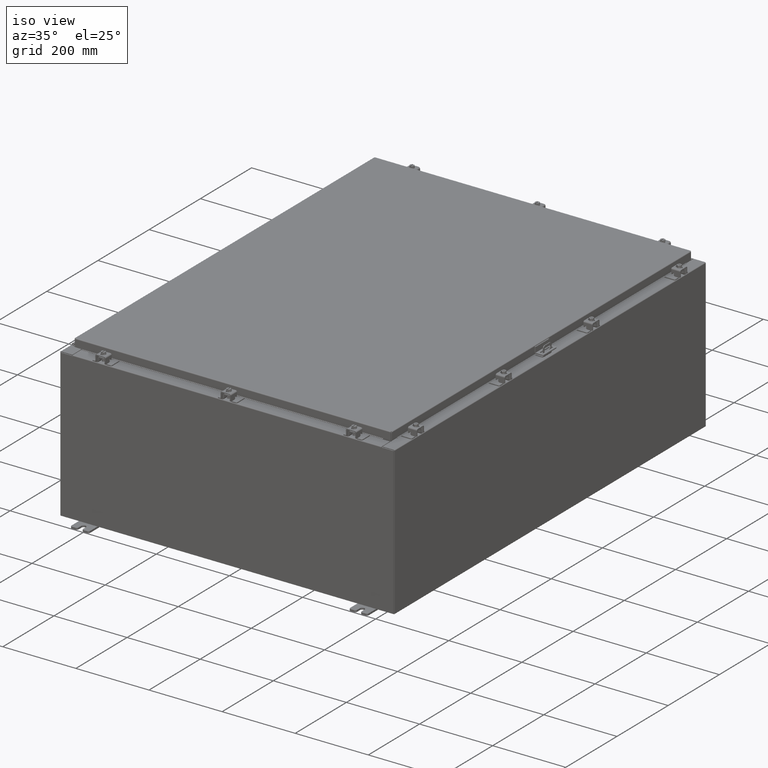
[diagram: clean part render]
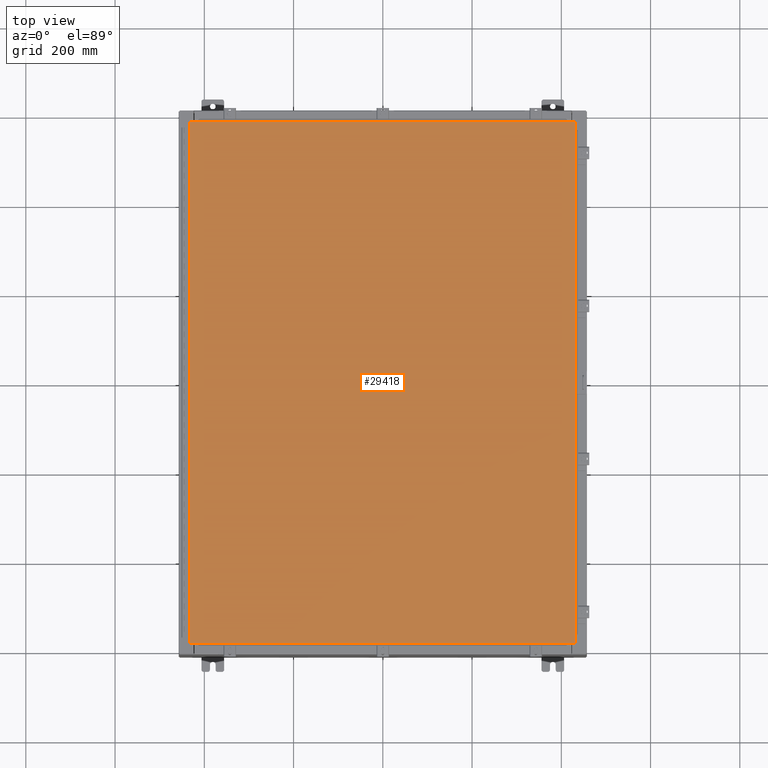
[diagram: tour spotlight — one face highlighted and labeled with its STEP entity id]
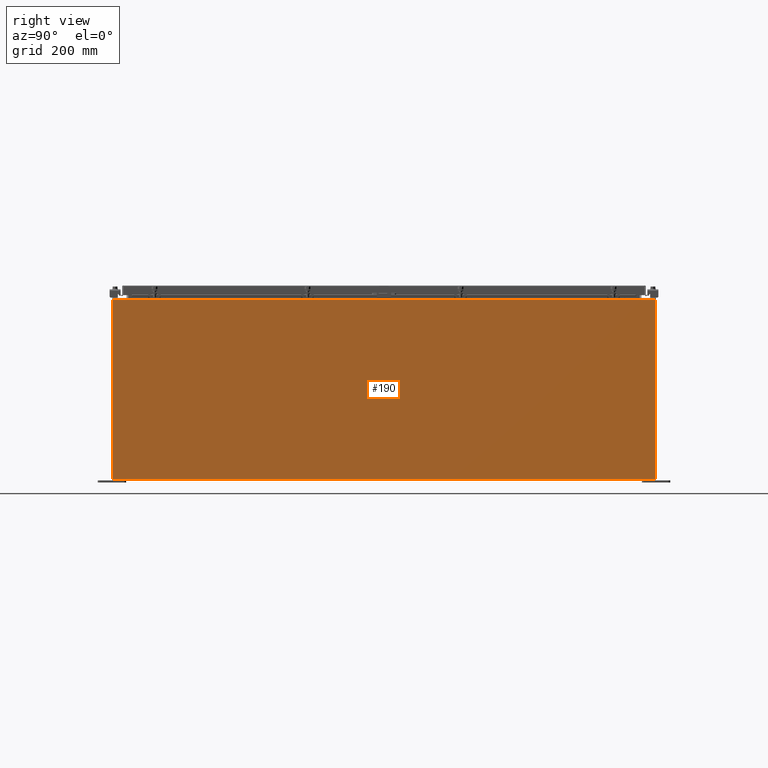
[diagram: tour spotlight — one face highlighted and labeled with its STEP entity id]
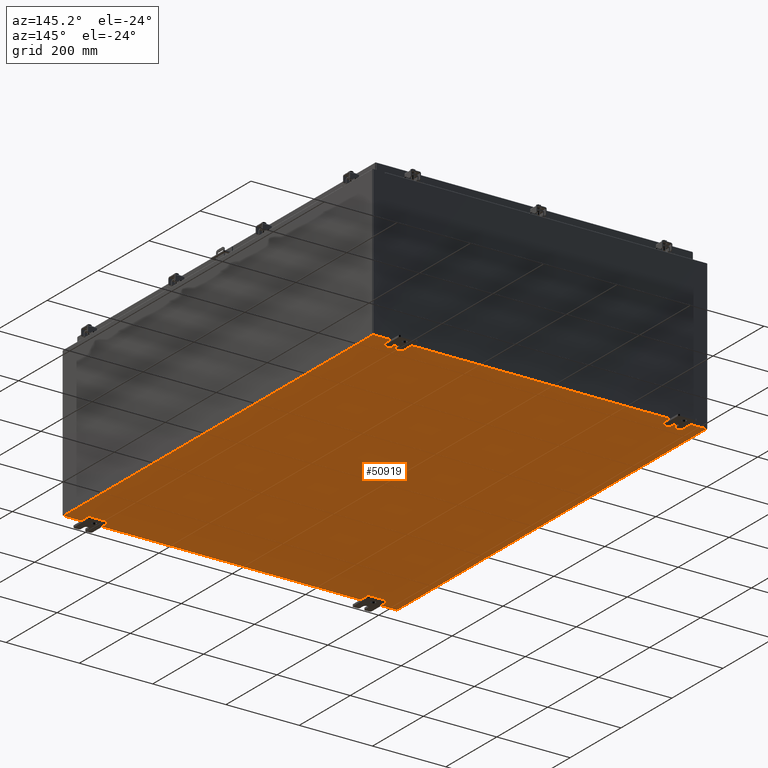
[diagram: tour spotlight — one face highlighted and labeled with its STEP entity id]
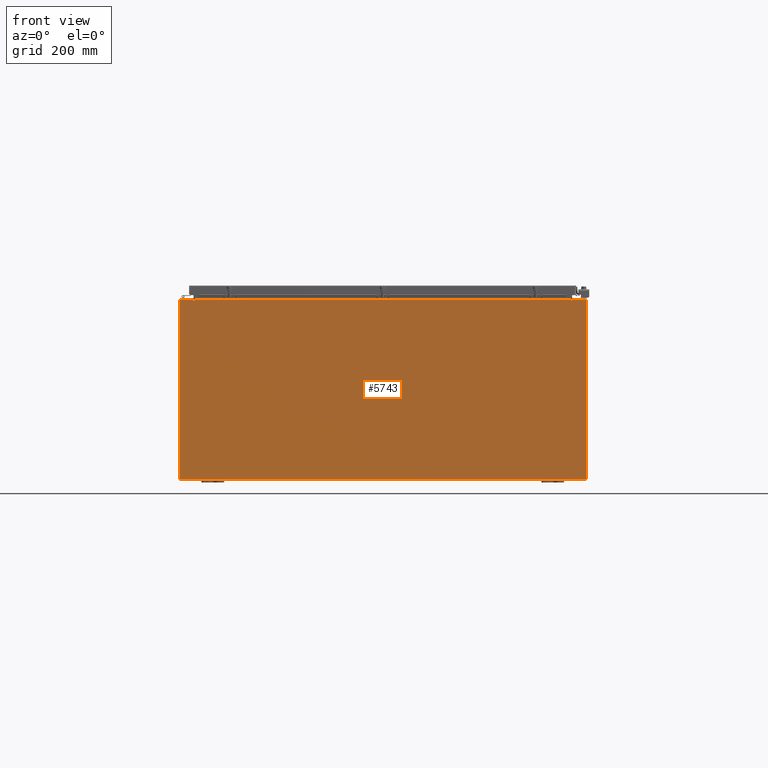
[diagram: tour spotlight — one face highlighted and labeled with its STEP entity id]
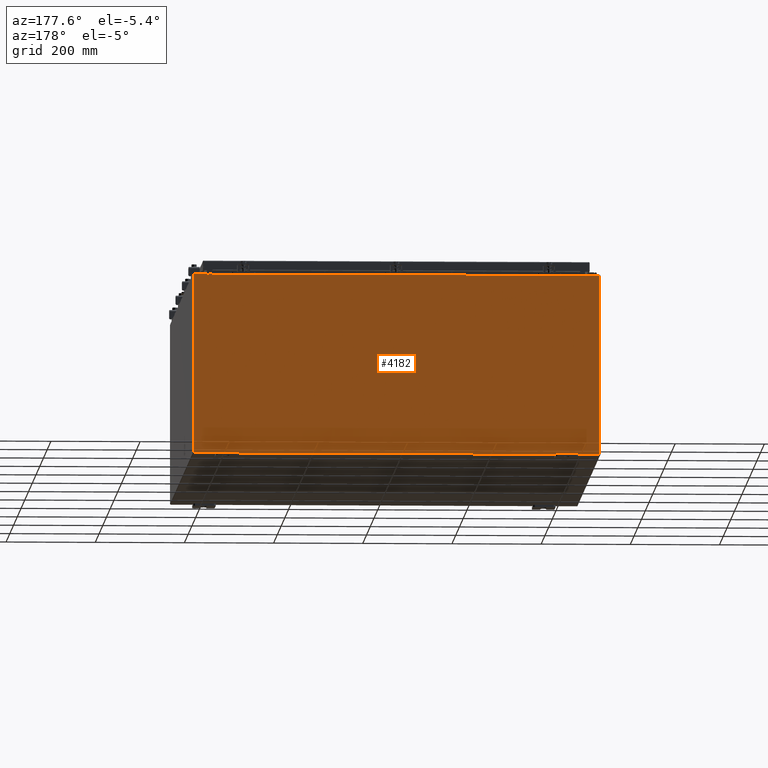
[diagram: tour spotlight — one face highlighted and labeled with its STEP entity id]
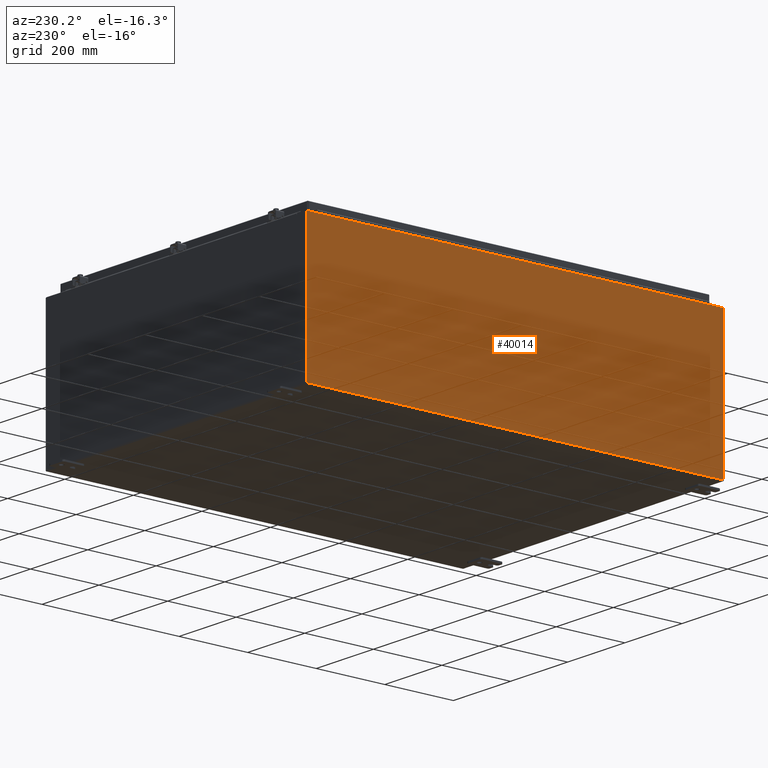
[diagram: tour spotlight — one face highlighted and labeled with its STEP entity id]
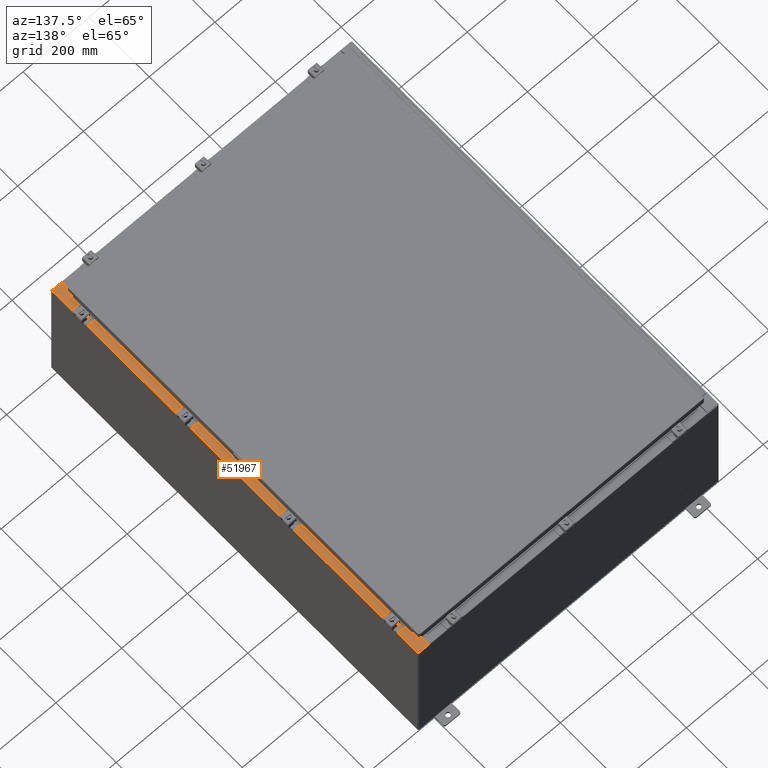
[diagram: tour spotlight — one face highlighted and labeled with its STEP entity id]
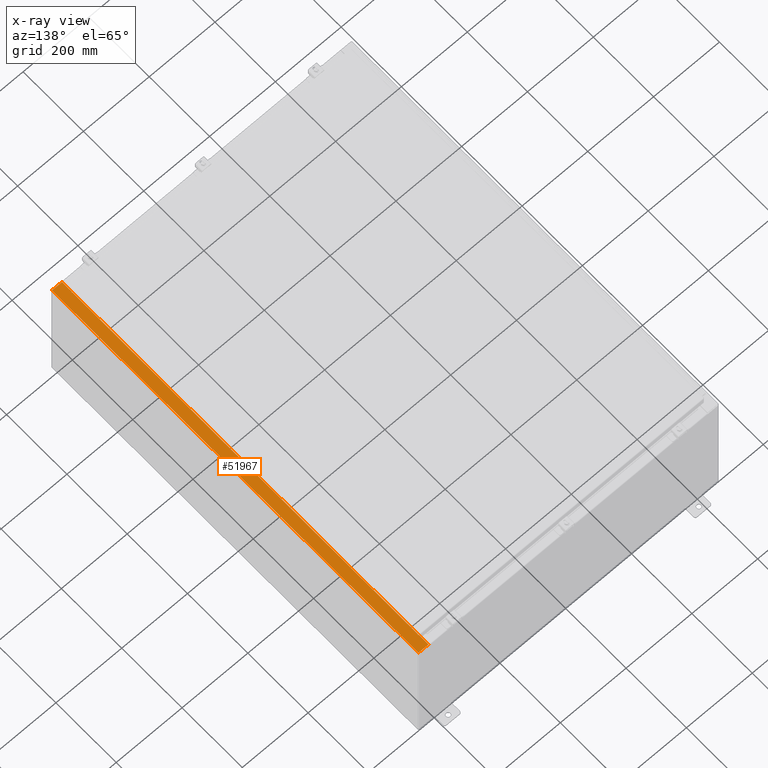
[diagram: x-ray of the same camera — body ghosted, this tour face saturated]
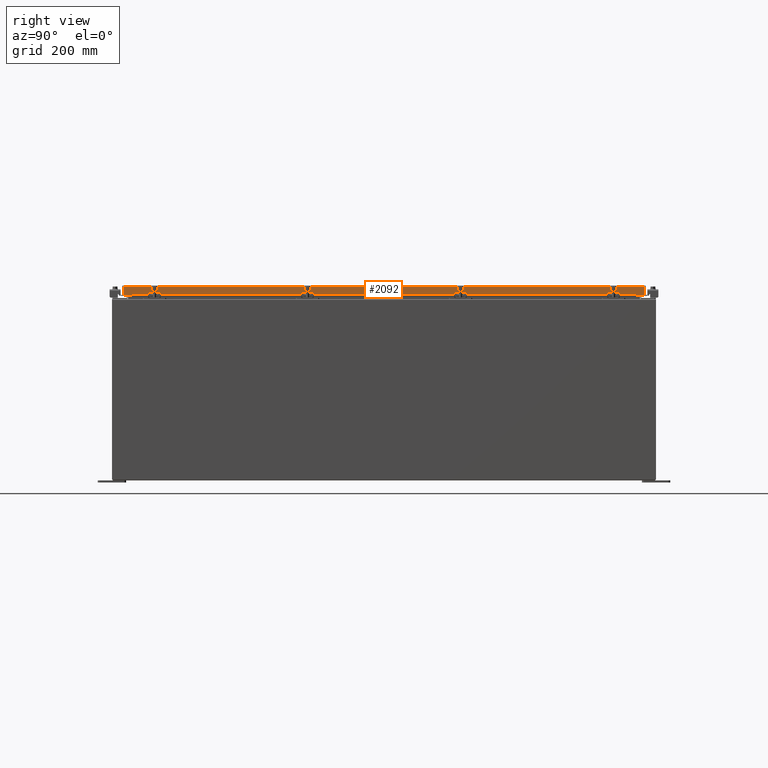
[diagram: tour spotlight — one face highlighted and labeled with its STEP entity id]
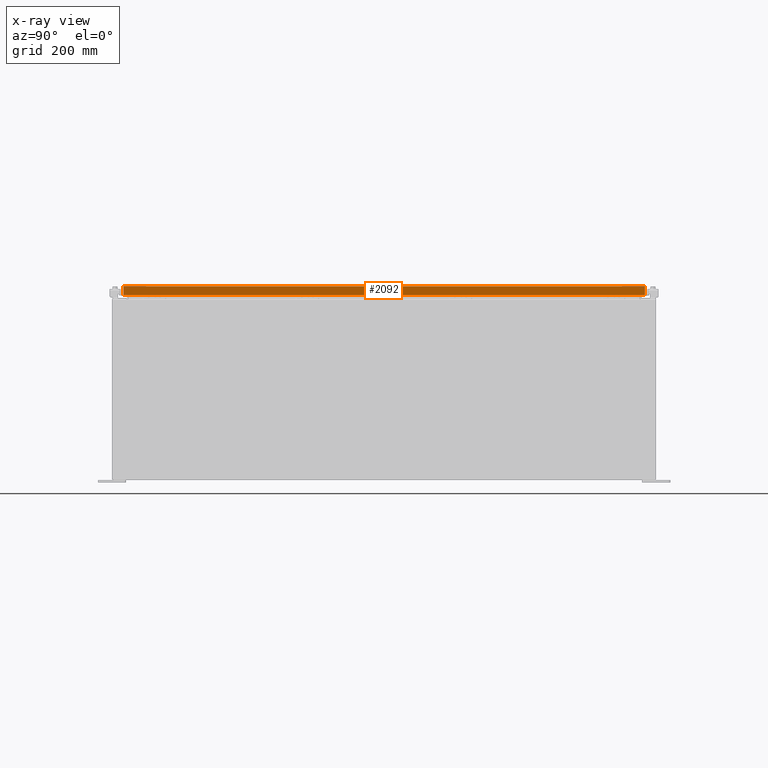
[diagram: x-ray of the same camera — body ghosted, this tour face saturated]
A machine part: a face-by-face anatomy tour. The part has 2999 B-rep faces; the first image is the clean iso view, then the 8 largest visible faces are spotlighted one at a time (largest first), each with its STEP entity span.

Face 1 — top view, entity #29418. In plain terms, the highlighted planar face has unit normal (0, 0, -1).
Definition (entity closure, byte-faithful):
#1171 = EDGE_LOOP ( 'NONE', ( #2895, #26150, #37841, #27634 ) ) ;
#2314 = CARTESIAN_POINT ( 'NONE',  ( -16.99029999999998400, 23.00630000000001000, -1.297627796990525000E-015 ) ) ;
#2895 = ORIENTED_EDGE ( 'NONE', *, *, #16157, .T. ) ;
#5520 = CARTESIAN_POINT ( 'NONE',  ( 16.99029999999999800, 23.00630000000001000, 1.946441695485787500E-015 ) ) ;
#6634 = VERTEX_POINT ( 'NONE', #2314 ) ;
#8112 = EDGE_CURVE ( 'NONE', #6634, #8594, #39844, .T. ) ;
#8594 = VERTEX_POINT ( 'NONE', #52334 ) ;
#12006 = PLANE ( 'NONE',  #14476 ) ;
#14476 = AXIS2_PLACEMENT_3D ( 'NONE', #41248, #16371, #45427 ) ;
#14924 = VERTEX_POINT ( 'NONE', #22422 ) ;
#15582 = CARTESIAN_POINT ( 'NONE',  ( 16.99029999999999800, -23.00630000000000300, -2.048885995248197400E-016 ) ) ;
#15733 = VERTEX_POINT ( 'NONE', #44893 ) ;
#16157 = EDGE_CURVE ( 'NONE', #8594, #14924, #31001, .T. ) ;
#16371 = DIRECTION ( 'NONE',  ( 0.0000000000000000000, 0.0000000000000000000, -1.000000000000000000 ) ) ;
#22422 = CARTESIAN_POINT ( 'NONE',  ( 16.99029999999999800, -23.00630000000000300, -2.048885995248197400E-016 ) ) ;
#23643 = LINE ( 'NONE', #15582, #47015 ) ;
#26150 = ORIENTED_EDGE ( 'NONE', *, *, #46929, .T. ) ;
#27634 = ORIENTED_EDGE ( 'NONE', *, *, #8112, .T. ) ;
#28037 = DIRECTION ( 'NONE',  ( 0.0000000000000000000, -1.000000000000000000, 0.0000000000000000000 ) ) ;
#28327 = CARTESIAN_POINT ( 'NONE',  ( -16.99029999999998400, 23.00630000000001000, -1.297627796990525000E-015 ) ) ;
#29418 = ADVANCED_FACE ( 'NONE', ( #30774 ), #12006, .F. ) ;
#30774 = FACE_OUTER_BOUND ( 'NONE', #1171, .T. ) ;
#31001 = LINE ( 'NONE', #32786, #51761 ) ;
#32724 = DIRECTION ( 'NONE',  ( 1.000000000000000000, -0.0000000000000000000, -0.0000000000000000000 ) ) ;
#32786 = CARTESIAN_POINT ( 'NONE',  ( -16.99029999999999800, -23.00630000000000300, 1.946441695485787500E-015 ) ) ;
#33405 = LINE ( 'NONE', #5520, #52902 ) ;
#35509 = EDGE_CURVE ( 'NONE', #15733, #6634, #33405, .T. ) ;
#37841 = ORIENTED_EDGE ( 'NONE', *, *, #35509, .T. ) ;
#39844 = LINE ( 'NONE', #28327, #50886 ) ;
#40462 = DIRECTION ( 'NONE',  ( 0.0000000000000000000, 1.000000000000000000, 0.0000000000000000000 ) ) ;
#41248 = CARTESIAN_POINT ( 'NONE',  ( 0.0000000000000000000, 0.0000000000000000000, 0.0000000000000000000 ) ) ;
#44893 = CARTESIAN_POINT ( 'NONE',  ( 16.99029999999999800, 23.00630000000001000, 1.946441695485787500E-015 ) ) ;
#45427 = DIRECTION ( 'NONE',  ( -1.000000000000000000, 0.0000000000000000000, -0.0000000000000000000 ) ) ;
#46929 = EDGE_CURVE ( 'NONE', #14924, #15733, #23643, .T. ) ;
#47015 = VECTOR ( 'NONE', #40462, 39.37007874015748100 ) ;
#47180 = DIRECTION ( 'NONE',  ( -1.000000000000000000, -0.0000000000000000000, -0.0000000000000000000 ) ) ;
#50886 = VECTOR ( 'NONE', #28037, 39.37007874015748100 ) ;
#51761 = VECTOR ( 'NONE', #32724, 39.37007874015748100 ) ;
#52334 = CARTESIAN_POINT ( 'NONE',  ( -16.99029999999999800, -23.00630000000000300, 1.946441695485787500E-015 ) ) ;
#52902 = VECTOR ( 'NONE', #47180, 39.37007874015748100 ) ;

Face 2 — right view, entity #190. In plain terms, the highlighted planar face has unit normal (-1, 0, 0).
Definition (entity closure, byte-faithful):
#190 = ADVANCED_FACE ( 'NONE', ( #40171 ), #27738, .F. ) ;
#564 = CARTESIAN_POINT ( 'NONE',  ( 17.99999999999999600, -23.92529999999998900, -6.201571169367080700E-014 ) ) ;
#3553 = AXIS2_PLACEMENT_3D ( 'NONE', #27453, #27391, #27358 ) ;
#6906 = EDGE_CURVE ( 'NONE', #37162, #32823, #31464, .T. ) ;
#8570 = VECTOR ( 'NONE', #50449, 39.37007874015748100 ) ;
#8915 = LINE ( 'NONE', #32624, #29795 ) ;
#9981 = EDGE_CURVE ( 'NONE', #37162, #26116, #8915, .T. ) ;
#14416 = ORIENTED_EDGE ( 'NONE', *, *, #9981, .F. ) ;
#15248 = CARTESIAN_POINT ( 'NONE',  ( 18.00000000000005000, 23.92529999999998900, 15.83760000000001400 ) ) ;
#15318 = CARTESIAN_POINT ( 'NONE',  ( 17.99999999999999600, -23.92529999999998900, 0.01299999999999898300 ) ) ;
#15794 = ORIENTED_EDGE ( 'NONE', *, *, #22948, .T. ) ;
#19399 = DIRECTION ( 'NONE',  ( -0.0000000000000000000, -1.000000000000000000, -0.0000000000000000000 ) ) ;
#20432 = VECTOR ( 'NONE', #20442, 39.37007874015748100 ) ;
#20442 = DIRECTION ( 'NONE',  ( 3.430827668758847500E-015, 0.0000000000000000000, 1.000000000000000000 ) ) ;
#21009 = ORIENTED_EDGE ( 'NONE', *, *, #38597, .T. ) ;
#22948 = EDGE_CURVE ( 'NONE', #32823, #44225, #31456, .T. ) ;
#26116 = VERTEX_POINT ( 'NONE', #15318 ) ;
#26758 = CARTESIAN_POINT ( 'NONE',  ( 18.00000000000005000, 23.92529999999998600, 15.83760000000001400 ) ) ;
#27135 = EDGE_LOOP ( 'NONE', ( #15794, #21009, #14416, #43679 ) ) ;
#27358 = DIRECTION ( 'NONE',  ( 3.430827668758846700E-015, 0.0000000000000000000, 1.000000000000000000 ) ) ;
#27391 = DIRECTION ( 'NONE',  ( -1.000000000000000000, 0.0000000000000000000, 3.430827668758846700E-015 ) ) ;
#27453 = CARTESIAN_POINT ( 'NONE',  ( 17.99999999999999600, 0.0000000000000000000, -6.201571169367080700E-014 ) ) ;
#27738 = PLANE ( 'NONE',  #3553 ) ;
#29795 = VECTOR ( 'NONE', #32279, 39.37007874015748100 ) ;
#30608 = CARTESIAN_POINT ( 'NONE',  ( 18.00000000000005000, -23.92529999999998900, 15.83760000000000200 ) ) ;
#30766 = LINE ( 'NONE', #564, #8570 ) ;
#31456 = LINE ( 'NONE', #15248, #52209 ) ;
#31464 = LINE ( 'NONE', #53433, #20432 ) ;
#32279 = DIRECTION ( 'NONE',  ( -1.566960444969418600E-031, -1.000000000000000000, -4.567295697298285000E-017 ) ) ;
#32624 = CARTESIAN_POINT ( 'NONE',  ( 17.99999999999999600, -23.92529999999998900, 0.01299999999999984700 ) ) ;
#32823 = VERTEX_POINT ( 'NONE', #26758 ) ;
#37162 = VERTEX_POINT ( 'NONE', #52956 ) ;
#38597 = EDGE_CURVE ( 'NONE', #44225, #26116, #30766, .T. ) ;
#40171 = FACE_OUTER_BOUND ( 'NONE', #27135, .T. ) ;
#43679 = ORIENTED_EDGE ( 'NONE', *, *, #6906, .T. ) ;
#44225 = VERTEX_POINT ( 'NONE', #30608 ) ;
#50449 = DIRECTION ( 'NONE',  ( -3.430827668758847500E-015, 0.0000000000000000000, -1.000000000000000000 ) ) ;
#52209 = VECTOR ( 'NONE', #19399, 39.37007874015748100 ) ;
#52956 = CARTESIAN_POINT ( 'NONE',  ( 17.99999999999999600, 23.92529999999998600, 0.01300000000000203200 ) ) ;
#53433 = CARTESIAN_POINT ( 'NONE',  ( 17.99999999999999600, 23.92529999999998900, -6.201571169367080700E-014 ) ) ;

Face 3 — auxiliary view, entity #50919. In plain terms, the highlighted planar face has unit normal (0, 0, -1).
Definition (entity closure, byte-faithful):
#72 = LINE ( 'NONE', #16853, #43060 ) ;
#1663 = LINE ( 'NONE', #48995, #33581 ) ;
#4718 = EDGE_CURVE ( 'NONE', #29238, #27357, #1663, .T. ) ;
#4918 = ORIENTED_EDGE ( 'NONE', *, *, #11083, .T. ) ;
#6222 = CARTESIAN_POINT ( 'NONE',  ( -18.00000000000000400, -23.92530000000000400, -0.07470000000000000300 ) ) ;
#7675 = LINE ( 'NONE', #6222, #29897 ) ;
#11083 = EDGE_CURVE ( 'NONE', #31146, #36055, #47288, .T. ) ;
#11749 = DIRECTION ( 'NONE',  ( -0.0000000000000000000, 1.000000000000000000, -0.0000000000000000000 ) ) ;
#12628 = CARTESIAN_POINT ( 'NONE',  ( 17.91229999999999500, -23.92530000000000000, -0.07470000000000000300 ) ) ;
#12982 = CARTESIAN_POINT ( 'NONE',  ( -17.91230000000000500, -23.92529999999998900, -0.07469999999999994700 ) ) ;
#16853 = CARTESIAN_POINT ( 'NONE',  ( -18.00000000000000400, 23.92530000000000000, -0.07470000000000000300 ) ) ;
#21894 = EDGE_LOOP ( 'NONE', ( #41852, #4918, #51636, #47450 ) ) ;
#23924 = VECTOR ( 'NONE', #11749, 39.37007874015748100 ) ;
#27357 = VERTEX_POINT ( 'NONE', #12628 ) ;
#28498 = DIRECTION ( 'NONE',  ( -1.000000000000000000, 0.0000000000000000000, -0.0000000000000000000 ) ) ;
#29238 = VERTEX_POINT ( 'NONE', #44341 ) ;
#29897 = VECTOR ( 'NONE', #35352, 39.37007874015748100 ) ;
#31146 = VERTEX_POINT ( 'NONE', #44497 ) ;
#31630 = EDGE_CURVE ( 'NONE', #31146, #27357, #7675, .T. ) ;
#33001 = DIRECTION ( 'NONE',  ( -1.000000000000000000, -0.0000000000000000000, -0.0000000000000000000 ) ) ;
#33581 = VECTOR ( 'NONE', #49391, 39.37007874015748100 ) ;
#35352 = DIRECTION ( 'NONE',  ( 1.000000000000000000, 1.214154663850783700E-016, 0.0000000000000000000 ) ) ;
#36055 = VERTEX_POINT ( 'NONE', #36702 ) ;
#36702 = CARTESIAN_POINT ( 'NONE',  ( -17.91230000000000500, 23.92529999999998900, -0.07470000000000000300 ) ) ;
#38532 = EDGE_CURVE ( 'NONE', #29238, #36055, #72, .T. ) ;
#38966 = FACE_OUTER_BOUND ( 'NONE', #21894, .T. ) ;
#40823 = PLANE ( 'NONE',  #53547 ) ;
#41852 = ORIENTED_EDGE ( 'NONE', *, *, #31630, .F. ) ;
#43060 = VECTOR ( 'NONE', #33001, 39.37007874015748100 ) ;
#44341 = CARTESIAN_POINT ( 'NONE',  ( 17.91229999999999500, 23.92529999999998600, -0.07469999999999688000 ) ) ;
#44497 = CARTESIAN_POINT ( 'NONE',  ( -17.91230000000000500, -23.92529999999998600, -0.07469999999999994700 ) ) ;
#47288 = LINE ( 'NONE', #12982, #23924 ) ;
#47450 = ORIENTED_EDGE ( 'NONE', *, *, #4718, .T. ) ;
#48995 = CARTESIAN_POINT ( 'NONE',  ( 17.91229999999999500, 23.92529999999998900, -0.07469999999999688000 ) ) ;
#49391 = DIRECTION ( 'NONE',  ( -0.0000000000000000000, -1.000000000000000000, -8.208677865577646300E-017 ) ) ;
#50919 = ADVANCED_FACE ( 'NONE', ( #38966 ), #40823, .T. ) ;
#51636 = ORIENTED_EDGE ( 'NONE', *, *, #38532, .F. ) ;
#53159 = CARTESIAN_POINT ( 'NONE',  ( 0.0000000000000000000, 0.0000000000000000000, -0.07470000000000000300 ) ) ;
#53350 = DIRECTION ( 'NONE',  ( 0.0000000000000000000, 0.0000000000000000000, -1.000000000000000000 ) ) ;
#53547 = AXIS2_PLACEMENT_3D ( 'NONE', #53159, #53350, #28498 ) ;

Face 4 — front view, entity #5743. In plain terms, the highlighted planar face has unit normal (-0, 1, -0).
Definition (entity closure, byte-faithful):
#1166 = VERTEX_POINT ( 'NONE', #16401 ) ;
#2170 = VECTOR ( 'NONE', #33138, 39.37007874015748100 ) ;
#3894 = LINE ( 'NONE', #22640, #24821 ) ;
#4020 = CARTESIAN_POINT ( 'NONE',  ( -16.63720000000000400, -0.0000000000000000000, 0.0000000000000000000 ) ) ;
#4654 = VERTEX_POINT ( 'NONE', #49142 ) ;
#5743 = ADVANCED_FACE ( 'NONE', ( #39359 ), #22353, .F. ) ;
#6007 = VERTEX_POINT ( 'NONE', #16470 ) ;
#6257 = CARTESIAN_POINT ( 'NONE',  ( -16.65587500000000200, 0.0000000000000000000, 7.874950000000001900 ) ) ;
#6452 = VECTOR ( 'NONE', #8465, 39.37007874015748100 ) ;
#6575 = CARTESIAN_POINT ( 'NONE',  ( -16.67455000000000000, 0.0000000000000000000, 7.925300000000001800 ) ) ;
#6834 = EDGE_CURVE ( 'NONE', #45065, #16388, #45085, .T. ) ;
#7066 = ORIENTED_EDGE ( 'NONE', *, *, #8341, .F. ) ;
#7680 = ORIENTED_EDGE ( 'NONE', *, *, #6834, .T. ) ;
#7919 = CARTESIAN_POINT ( 'NONE',  ( -17.92530000000000000, 0.0000000000000000000, 7.925300000000001800 ) ) ;
#7985 = VERTEX_POINT ( 'NONE', #35942 ) ;
#8327 = CARTESIAN_POINT ( 'NONE',  ( 17.92530000000000000, 0.0000000000000000000, 7.925300000000000000 ) ) ;
#8341 = EDGE_CURVE ( 'NONE', #30681, #13584, #40478, .T. ) ;
#8465 = DIRECTION ( 'NONE',  ( -1.000000000000000000, -0.0000000000000000000, -0.0000000000000000000 ) ) ;
#8798 = LINE ( 'NONE', #32637, #18602 ) ;
#9398 = CARTESIAN_POINT ( 'NONE',  ( -17.92530000000000000, 0.0000000000000000000, -7.925299999999997300 ) ) ;
#9473 = LINE ( 'NONE', #18185, #19293 ) ;
#10494 = DIRECTION ( 'NONE',  ( 0.0000000000000000000, 0.0000000000000000000, -1.000000000000000000 ) ) ;
#11338 = CARTESIAN_POINT ( 'NONE',  ( -16.67455000000000000, 0.0000000000000000000, 7.874950000000001900 ) ) ;
#11970 = DIRECTION ( 'NONE',  ( 1.000000000000000000, 0.0000000000000000000, -6.096072018129154100E-017 ) ) ;
#12288 = VERTEX_POINT ( 'NONE', #25912 ) ;
#12326 = DIRECTION ( 'NONE',  ( -0.0000000000000000000, 1.000000000000000000, -0.0000000000000000000 ) ) ;
#12799 = VECTOR ( 'NONE', #40572, 39.37007874015748100 ) ;
#13001 = VERTEX_POINT ( 'NONE', #6575 ) ;
#13584 = VERTEX_POINT ( 'NONE', #49342 ) ;
#14021 = DIRECTION ( 'NONE',  ( 0.0000000000000000000, 0.0000000000000000000, 1.000000000000000000 ) ) ;
#14607 = ORIENTED_EDGE ( 'NONE', *, *, #14903, .F. ) ;
#14903 = EDGE_CURVE ( 'NONE', #6007, #4654, #3894, .T. ) ;
#15350 = EDGE_CURVE ( 'NONE', #12288, #45065, #29965, .T. ) ;
#15792 = DIRECTION ( 'NONE',  ( -8.681145560800387200E-014, 0.0000000000000000000, -1.000000000000000000 ) ) ;
#15840 = EDGE_CURVE ( 'NONE', #30681, #34734, #24558, .T. ) ;
#15969 = LINE ( 'NONE', #20431, #47811 ) ;
#16071 = EDGE_CURVE ( 'NONE', #34734, #12288, #34888, .T. ) ;
#16272 = CARTESIAN_POINT ( 'NONE',  ( 16.67454999999931800, -0.0000000000000000000, -1.447541957108381700E-012 ) ) ;
#16388 = VERTEX_POINT ( 'NONE', #21304 ) ;
#16401 = CARTESIAN_POINT ( 'NONE',  ( -16.63720000000000400, -0.0000000000000000000, 7.874950000000001900 ) ) ;
#16470 = CARTESIAN_POINT ( 'NONE',  ( 16.63720000000000400, 0.0000000000000000000, 7.874950000000001900 ) ) ;
#16653 = CIRCLE ( 'NONE', #51273, 0.01867499999999949400 ) ;
#17542 = DIRECTION ( 'NONE',  ( 1.000000000000000000, 0.0000000000000000000, -6.096072018129154100E-017 ) ) ;
#18185 = CARTESIAN_POINT ( 'NONE',  ( -16.67455000000000000, -0.0000000000000000000, 0.0000000000000000000 ) ) ;
#18384 = VECTOR ( 'NONE', #15792, 39.37007874015748100 ) ;
#18602 = VECTOR ( 'NONE', #11970, 39.37007874015748100 ) ;
#19265 = CARTESIAN_POINT ( 'NONE',  ( -17.92530000000000000, 0.0000000000000000000, -7.925299999999997300 ) ) ;
#19293 = VECTOR ( 'NONE', #14021, 39.37007874015748100 ) ;
#20431 = CARTESIAN_POINT ( 'NONE',  ( -16.63720000000000400, -2.356218894535426900E-015, 7.912300000000008100 ) ) ;
#20460 = DIRECTION ( 'NONE',  ( -0.0000000000000000000, -0.0000000000000000000, 1.000000000000000000 ) ) ;
#21304 = CARTESIAN_POINT ( 'NONE',  ( -17.92530000000000000, 0.0000000000000000000, 7.925300000000001800 ) ) ;
#21993 = DIRECTION ( 'NONE',  ( 0.0000000000000000000, -0.0000000000000000000, -1.000000000000000000 ) ) ;
#22054 = DIRECTION ( 'NONE',  ( 0.0000000000000000000, -1.000000000000000000, 0.0000000000000000000 ) ) ;
#22353 = PLANE ( 'NONE',  #41432 ) ;
#22576 = DIRECTION ( 'NONE',  ( 0.0000000000000000000, 0.0000000000000000000, 1.000000000000000000 ) ) ;
#22640 = CARTESIAN_POINT ( 'NONE',  ( 16.63720000000000400, 0.0000000000000000000, 0.0000000000000000000 ) ) ;
#23347 = CARTESIAN_POINT ( 'NONE',  ( 0.0000000000000000000, 0.0000000000000000000, 0.0000000000000000000 ) ) ;
#24119 = ORIENTED_EDGE ( 'NONE', *, *, #34686, .T. ) ;
#24558 = LINE ( 'NONE', #7919, #45312 ) ;
#24821 = VECTOR ( 'NONE', #22576, 39.37007874015748100 ) ;
#25912 = CARTESIAN_POINT ( 'NONE',  ( 17.92530000000000000, 0.0000000000000000000, -7.925299999999997300 ) ) ;
#28191 = EDGE_CURVE ( 'NONE', #13584, #6007, #16653, .T. ) ;
#28767 = CARTESIAN_POINT ( 'NONE',  ( 16.67455000000000700, 0.0000000000000000000, 7.925300000000000000 ) ) ;
#29464 = CARTESIAN_POINT ( 'NONE',  ( -17.92530000000000000, 0.0000000000000000000, 7.925300000000001800 ) ) ;
#29965 = LINE ( 'NONE', #9398, #6452 ) ;
#30274 = ORIENTED_EDGE ( 'NONE', *, *, #42940, .F. ) ;
#30648 = ORIENTED_EDGE ( 'NONE', *, *, #16071, .T. ) ;
#30681 = VERTEX_POINT ( 'NONE', #28767 ) ;
#31527 = LINE ( 'NONE', #4020, #2170 ) ;
#32144 = ORIENTED_EDGE ( 'NONE', *, *, #15350, .T. ) ;
#32637 = CARTESIAN_POINT ( 'NONE',  ( -17.92530000000000000, 0.0000000000000000000, 7.925300000000001800 ) ) ;
#33138 = DIRECTION ( 'NONE',  ( 0.0000000000000000000, 0.0000000000000000000, -1.000000000000000000 ) ) ;
#34023 = VECTOR ( 'NONE', #20460, 39.37007874015748100 ) ;
#34415 = CIRCLE ( 'NONE', #44845, 0.01867499999999949400 ) ;
#34686 = EDGE_CURVE ( 'NONE', #7985, #4654, #15969, .T. ) ;
#34734 = VERTEX_POINT ( 'NONE', #8327 ) ;
#34888 = LINE ( 'NONE', #40913, #12799 ) ;
#35393 = DIRECTION ( 'NONE',  ( -0.0000000000000000000, 1.000000000000000000, -0.0000000000000000000 ) ) ;
#35942 = CARTESIAN_POINT ( 'NONE',  ( -16.63720000000000400, -2.356218894535426900E-015, 7.912300000000008100 ) ) ;
#36411 = ORIENTED_EDGE ( 'NONE', *, *, #37312, .F. ) ;
#36419 = EDGE_CURVE ( 'NONE', #40310, #13001, #9473, .T. ) ;
#36697 = ORIENTED_EDGE ( 'NONE', *, *, #28191, .F. ) ;
#37192 = CARTESIAN_POINT ( 'NONE',  ( 16.65587500000000200, 0.0000000000000000000, 7.874950000000001900 ) ) ;
#37312 = EDGE_CURVE ( 'NONE', #7985, #1166, #31527, .T. ) ;
#39359 = FACE_OUTER_BOUND ( 'NONE', #42779, .T. ) ;
#40310 = VERTEX_POINT ( 'NONE', #11338 ) ;
#40478 = LINE ( 'NONE', #16272, #18384 ) ;
#40572 = DIRECTION ( 'NONE',  ( 0.0000000000000000000, 0.0000000000000000000, -1.000000000000000000 ) ) ;
#40913 = CARTESIAN_POINT ( 'NONE',  ( 17.92530000000000000, 0.0000000000000000000, 7.925300000000000000 ) ) ;
#41377 = DIRECTION ( 'NONE',  ( 0.0000000000000000000, 0.0000000000000000000, -1.000000000000000000 ) ) ;
#41432 = AXIS2_PLACEMENT_3D ( 'NONE', #23347, #22054, #21993 ) ;
#42779 = EDGE_LOOP ( 'NONE', ( #47159, #30274, #36411, #24119, #14607, #36697, #7066, #49056, #30648, #32144, #7680, #44138 ) ) ;
#42940 = EDGE_CURVE ( 'NONE', #1166, #40310, #34415, .T. ) ;
#44138 = ORIENTED_EDGE ( 'NONE', *, *, #45182, .T. ) ;
#44845 = AXIS2_PLACEMENT_3D ( 'NONE', #6257, #35393, #10494 ) ;
#45065 = VERTEX_POINT ( 'NONE', #19265 ) ;
#45085 = LINE ( 'NONE', #29464, #34023 ) ;
#45182 = EDGE_CURVE ( 'NONE', #16388, #13001, #8798, .T. ) ;
#45312 = VECTOR ( 'NONE', #17542, 39.37007874015748100 ) ;
#47159 = ORIENTED_EDGE ( 'NONE', *, *, #36419, .F. ) ;
#47811 = VECTOR ( 'NONE', #49441, 39.37007874015748100 ) ;
#49056 = ORIENTED_EDGE ( 'NONE', *, *, #15840, .T. ) ;
#49142 = CARTESIAN_POINT ( 'NONE',  ( 16.63720000000000400, 0.0000000000000000000, 7.912300000000001900 ) ) ;
#49342 = CARTESIAN_POINT ( 'NONE',  ( 16.67455000000000000, 0.0000000000000000000, 7.874950000000001900 ) ) ;
#49441 = DIRECTION ( 'NONE',  ( 1.000000000000000000, 0.0000000000000000000, 0.0000000000000000000 ) ) ;
#51273 = AXIS2_PLACEMENT_3D ( 'NONE', #37192, #12326, #41377 ) ;

Face 5 — auxiliary view, entity #4182. In plain terms, the highlighted planar face has unit normal (0, -1, 0).
Definition (entity closure, byte-faithful):
#1086 = EDGE_CURVE ( 'NONE', #13021, #41568, #41350, .T. ) ;
#2528 = EDGE_CURVE ( 'NONE', #5652, #52575, #37097, .T. ) ;
#4182 = ADVANCED_FACE ( 'NONE', ( #4354 ), #25015, .F. ) ;
#4354 = FACE_OUTER_BOUND ( 'NONE', #31393, .T. ) ;
#5200 = CARTESIAN_POINT ( 'NONE',  ( -16.67455000000000000, 0.0000000000000000000, 7.874950000000001900 ) ) ;
#5199 = DIRECTION ( 'NONE',  ( 0.0000000000000000000, 0.0000000000000000000, 1.000000000000000000 ) ) ;
#5386 = CARTESIAN_POINT ( 'NONE',  ( 16.67455000000000700, 0.0000000000000000000, 7.925300000000000000 ) ) ;
#5618 = DIRECTION ( 'NONE',  ( 0.0000000000000000000, -0.0000000000000000000, -1.000000000000000000 ) ) ;
#5652 = VERTEX_POINT ( 'NONE', #24715 ) ;
#6684 = ORIENTED_EDGE ( 'NONE', *, *, #32164, .T. ) ;
#7285 = VERTEX_POINT ( 'NONE', #11741 ) ;
#8282 = EDGE_CURVE ( 'NONE', #5652, #11285, #21033, .T. ) ;
#8969 = VECTOR ( 'NONE', #33643, 39.37007874015748100 ) ;
#9460 = DIRECTION ( 'NONE',  ( 0.0000000000000000000, -1.000000000000000000, 0.0000000000000000000 ) ) ;
#10056 = EDGE_CURVE ( 'NONE', #11285, #17646, #46646, .T. ) ;
#11007 = LINE ( 'NONE', #36868, #42834 ) ;
#11285 = VERTEX_POINT ( 'NONE', #22337 ) ;
#11674 = CARTESIAN_POINT ( 'NONE',  ( 16.63720000000000400, 0.0000000000000000000, 7.912300000000001900 ) ) ;
#11741 = CARTESIAN_POINT ( 'NONE',  ( 17.92530000000000000, 0.0000000000000000000, 7.925300000000000000 ) ) ;
#12866 = CARTESIAN_POINT ( 'NONE',  ( 16.67454999999931800, -0.0000000000000000000, -1.447541957108381700E-012 ) ) ;
#13021 = VERTEX_POINT ( 'NONE', #5386 ) ;
#13119 = DIRECTION ( 'NONE',  ( -8.681145560800387200E-014, 0.0000000000000000000, -1.000000000000000000 ) ) ;
#13189 = LINE ( 'NONE', #21850, #22968 ) ;
#13278 = CARTESIAN_POINT ( 'NONE',  ( 16.63720000000000400, 0.0000000000000000000, 0.0000000000000000000 ) ) ;
#13357 = ORIENTED_EDGE ( 'NONE', *, *, #2528, .T. ) ;
#14421 = ORIENTED_EDGE ( 'NONE', *, *, #29628, .F. ) ;
#14877 = VECTOR ( 'NONE', #26468, 39.37007874015748100 ) ;
#15042 = VECTOR ( 'NONE', #32499, 39.37007874015748100 ) ;
#15204 = CARTESIAN_POINT ( 'NONE',  ( -17.92530000000000000, 0.0000000000000000000, 7.925300000000001800 ) ) ;
#16516 = CIRCLE ( 'NONE', #19699, 0.01867499999999949400 ) ;
#17104 = EDGE_CURVE ( 'NONE', #13021, #7285, #38041, .T. ) ;
#17488 = DIRECTION ( 'NONE',  ( 1.000000000000000000, 0.0000000000000000000, -6.096072018129154100E-017 ) ) ;
#17591 = EDGE_CURVE ( 'NONE', #49394, #52575, #28246, .T. ) ;
#17646 = VERTEX_POINT ( 'NONE', #5200 ) ;
#17909 = EDGE_CURVE ( 'NONE', #41568, #49394, #16516, .T. ) ;
#18182 = CARTESIAN_POINT ( 'NONE',  ( -16.63720000000000400, -0.0000000000000000000, 0.0000000000000000000 ) ) ;
#18518 = VERTEX_POINT ( 'NONE', #15204 ) ;
#18714 = DIRECTION ( 'NONE',  ( 0.0000000000000000000, 0.0000000000000000000, -1.000000000000000000 ) ) ;
#18991 = ORIENTED_EDGE ( 'NONE', *, *, #17909, .F. ) ;
#19699 = AXIS2_PLACEMENT_3D ( 'NONE', #48641, #23804, #52808 ) ;
#19703 = VECTOR ( 'NONE', #18714, 39.37007874015748100 ) ;
#20086 = LINE ( 'NONE', #41851, #8969 ) ;
#20199 = LINE ( 'NONE', #40168, #51990 ) ;
#20269 = ORIENTED_EDGE ( 'NONE', *, *, #8282, .F. ) ;
#20438 = ORIENTED_EDGE ( 'NONE', *, *, #26254, .T. ) ;
#21033 = LINE ( 'NONE', #18182, #19703 ) ;
#21788 = EDGE_CURVE ( 'NONE', #7285, #26777, #20086, .T. ) ;
#21850 = CARTESIAN_POINT ( 'NONE',  ( -16.67455000000000000, -0.0000000000000000000, 0.0000000000000000000 ) ) ;
#22337 = CARTESIAN_POINT ( 'NONE',  ( -16.63720000000000400, -0.0000000000000000000, 7.874950000000001900 ) ) ;
#22968 = VECTOR ( 'NONE', #5199, 39.37007874015748100 ) ;
#23804 = DIRECTION ( 'NONE',  ( -0.0000000000000000000, 1.000000000000000000, -0.0000000000000000000 ) ) ;
#24242 = ORIENTED_EDGE ( 'NONE', *, *, #21788, .T. ) ;
#24715 = CARTESIAN_POINT ( 'NONE',  ( -16.63720000000000400, -2.356218894535426900E-015, 7.912300000000008100 ) ) ;
#25015 = PLANE ( 'NONE',  #30953 ) ;
#25791 = DIRECTION ( 'NONE',  ( 0.0000000000000000000, 0.0000000000000000000, -1.000000000000000000 ) ) ;
#25852 = DIRECTION ( 'NONE',  ( -0.0000000000000000000, 1.000000000000000000, -0.0000000000000000000 ) ) ;
#25855 = DIRECTION ( 'NONE',  ( 0.0000000000000000000, 0.0000000000000000000, 1.000000000000000000 ) ) ;
#25964 = CARTESIAN_POINT ( 'NONE',  ( -16.65587500000000200, 0.0000000000000000000, 7.874950000000001900 ) ) ;
#26254 = EDGE_CURVE ( 'NONE', #18518, #40040, #11007, .T. ) ;
#26468 = DIRECTION ( 'NONE',  ( -0.0000000000000000000, -0.0000000000000000000, 1.000000000000000000 ) ) ;
#26777 = VERTEX_POINT ( 'NONE', #28865 ) ;
#27019 = VECTOR ( 'NONE', #17488, 39.37007874015748100 ) ;
#27520 = CARTESIAN_POINT ( 'NONE',  ( 16.63720000000000400, 0.0000000000000000000, 7.874950000000001900 ) ) ;
#28246 = LINE ( 'NONE', #13278, #37991 ) ;
#28865 = CARTESIAN_POINT ( 'NONE',  ( 17.92530000000000000, 0.0000000000000000000, -7.925299999999997300 ) ) ;
#29628 = EDGE_CURVE ( 'NONE', #17646, #40040, #13189, .T. ) ;
#30953 = AXIS2_PLACEMENT_3D ( 'NONE', #43963, #9460, #5618 ) ;
#31130 = EDGE_CURVE ( 'NONE', #26777, #43690, #20199, .T. ) ;
#31212 = CARTESIAN_POINT ( 'NONE',  ( -16.63720000000000400, -2.356218894535426900E-015, 7.912300000000008100 ) ) ;
#31393 = EDGE_LOOP ( 'NONE', ( #14421, #41703, #20269, #13357, #53130, #18991, #38482, #36568, #24242, #32680, #6684, #20438 ) ) ;
#31619 = VECTOR ( 'NONE', #13119, 39.37007874015748100 ) ;
#32164 = EDGE_CURVE ( 'NONE', #43690, #18518, #36937, .T. ) ;
#32499 = DIRECTION ( 'NONE',  ( 1.000000000000000000, 0.0000000000000000000, 0.0000000000000000000 ) ) ;
#32680 = ORIENTED_EDGE ( 'NONE', *, *, #31130, .T. ) ;
#33643 = DIRECTION ( 'NONE',  ( 0.0000000000000000000, 0.0000000000000000000, -1.000000000000000000 ) ) ;
#34173 = CARTESIAN_POINT ( 'NONE',  ( -17.92530000000000000, 0.0000000000000000000, 7.925300000000001800 ) ) ;
#36568 = ORIENTED_EDGE ( 'NONE', *, *, #17104, .T. ) ;
#36868 = CARTESIAN_POINT ( 'NONE',  ( -17.92530000000000000, 0.0000000000000000000, 7.925300000000001800 ) ) ;
#36937 = LINE ( 'NONE', #51279, #14877 ) ;
#37097 = LINE ( 'NONE', #31212, #15042 ) ;
#37540 = CARTESIAN_POINT ( 'NONE',  ( 16.67455000000000000, 0.0000000000000000000, 7.874950000000001900 ) ) ;
#37991 = VECTOR ( 'NONE', #25855, 39.37007874015748100 ) ;
#38041 = LINE ( 'NONE', #34173, #27019 ) ;
#38482 = ORIENTED_EDGE ( 'NONE', *, *, #1086, .F. ) ;
#40040 = VERTEX_POINT ( 'NONE', #46231 ) ;
#40168 = CARTESIAN_POINT ( 'NONE',  ( -17.92530000000000000, 0.0000000000000000000, -7.925299999999997300 ) ) ;
#40425 = CARTESIAN_POINT ( 'NONE',  ( -17.92530000000000000, 0.0000000000000000000, -7.925299999999997300 ) ) ;
#41350 = LINE ( 'NONE', #12866, #31619 ) ;
#41568 = VERTEX_POINT ( 'NONE', #37540 ) ;
#41703 = ORIENTED_EDGE ( 'NONE', *, *, #10056, .F. ) ;
#41851 = CARTESIAN_POINT ( 'NONE',  ( 17.92530000000000000, 0.0000000000000000000, 7.925300000000000000 ) ) ;
#42834 = VECTOR ( 'NONE', #45052, 39.37007874015748100 ) ;
#43690 = VERTEX_POINT ( 'NONE', #40425 ) ;
#43963 = CARTESIAN_POINT ( 'NONE',  ( 0.0000000000000000000, 0.0000000000000000000, 0.0000000000000000000 ) ) ;
#45052 = DIRECTION ( 'NONE',  ( 1.000000000000000000, 0.0000000000000000000, -6.096072018129154100E-017 ) ) ;
#46231 = CARTESIAN_POINT ( 'NONE',  ( -16.67455000000000000, 0.0000000000000000000, 7.925300000000001800 ) ) ;
#46646 = CIRCLE ( 'NONE', #48969, 0.01867499999999949400 ) ;
#48641 = CARTESIAN_POINT ( 'NONE',  ( 16.65587500000000200, 0.0000000000000000000, 7.874950000000001900 ) ) ;
#48675 = DIRECTION ( 'NONE',  ( -1.000000000000000000, -0.0000000000000000000, -0.0000000000000000000 ) ) ;
#48969 = AXIS2_PLACEMENT_3D ( 'NONE', #25964, #25852, #25791 ) ;
#49394 = VERTEX_POINT ( 'NONE', #27520 ) ;
#51279 = CARTESIAN_POINT ( 'NONE',  ( -17.92530000000000000, 0.0000000000000000000, 7.925300000000001800 ) ) ;
#51990 = VECTOR ( 'NONE', #48675, 39.37007874015748100 ) ;
#52575 = VERTEX_POINT ( 'NONE', #11674 ) ;
#52808 = DIRECTION ( 'NONE',  ( 0.0000000000000000000, 0.0000000000000000000, -1.000000000000000000 ) ) ;
#53130 = ORIENTED_EDGE ( 'NONE', *, *, #17591, .F. ) ;

Face 6 — auxiliary view, entity #40014. In plain terms, the highlighted planar face has unit normal (1, 0, 0).
Definition (entity closure, byte-faithful):
#233 = ORIENTED_EDGE ( 'NONE', *, *, #50078, .F. ) ;
#443 = VECTOR ( 'NONE', #46042, 39.37007874015748100 ) ;
#807 = VERTEX_POINT ( 'NONE', #6344 ) ;
#5989 = CARTESIAN_POINT ( 'NONE',  ( -18.00000000000000400, 23.92529999999998900, 0.01299999999999984700 ) ) ;
#6344 = CARTESIAN_POINT ( 'NONE',  ( -18.00000000000000400, 23.92529999999998900, 0.01299999999999984800 ) ) ;
#7395 = VERTEX_POINT ( 'NONE', #11358 ) ;
#8333 = CARTESIAN_POINT ( 'NONE',  ( -18.00000000000006000, -23.92529999999998900, 15.83759999999998200 ) ) ;
#11358 = CARTESIAN_POINT ( 'NONE',  ( -18.00000000000006000, 23.92529999999998900, 15.83759999999999500 ) ) ;
#13003 = DIRECTION ( 'NONE',  ( 3.430827668758847900E-015, 0.0000000000000000000, -1.000000000000000000 ) ) ;
#13059 = VECTOR ( 'NONE', #43427, 39.37007874015748100 ) ;
#14828 = EDGE_LOOP ( 'NONE', ( #21891, #16723, #233, #37908 ) ) ;
#16723 = ORIENTED_EDGE ( 'NONE', *, *, #21783, .T. ) ;
#17536 = LINE ( 'NONE', #30725, #38335 ) ;
#21203 = CARTESIAN_POINT ( 'NONE',  ( -18.00000000000000400, 23.92529999999998900, -6.201571169367085800E-014 ) ) ;
#21225 = CARTESIAN_POINT ( 'NONE',  ( -18.00000000000000400, 0.0000000000000000000, -6.201571169367085800E-014 ) ) ;
#21783 = EDGE_CURVE ( 'NONE', #7395, #807, #44737, .T. ) ;
#21891 = ORIENTED_EDGE ( 'NONE', *, *, #46398, .T. ) ;
#23481 = FACE_OUTER_BOUND ( 'NONE', #14828, .T. ) ;
#24128 = LINE ( 'NONE', #5989, #13059 ) ;
#25389 = PLANE ( 'NONE',  #51702 ) ;
#26323 = VECTOR ( 'NONE', #49994, 39.37007874015748100 ) ;
#26747 = DIRECTION ( 'NONE',  ( -3.430827668758847900E-015, 0.0000000000000000000, 1.000000000000000000 ) ) ;
#30725 = CARTESIAN_POINT ( 'NONE',  ( -18.00000000000000400, -23.92529999999999600, -6.201571169367085800E-014 ) ) ;
#32527 = CARTESIAN_POINT ( 'NONE',  ( -18.00000000000000400, -23.92529999999998600, 0.01299999999999984700 ) ) ;
#32596 = VERTEX_POINT ( 'NONE', #45815 ) ;
#36066 = VERTEX_POINT ( 'NONE', #32527 ) ;
#37313 = LINE ( 'NONE', #8333, #26323 ) ;
#37875 = DIRECTION ( 'NONE',  ( 1.000000000000000000, 0.0000000000000000000, 3.430827668758847900E-015 ) ) ;
#37908 = ORIENTED_EDGE ( 'NONE', *, *, #50673, .T. ) ;
#38335 = VECTOR ( 'NONE', #26747, 39.37007874015748100 ) ;
#40014 = ADVANCED_FACE ( 'NONE', ( #23481 ), #25389, .F. ) ;
#43427 = DIRECTION ( 'NONE',  ( -0.0000000000000000000, 1.000000000000000000, -0.0000000000000000000 ) ) ;
#44737 = LINE ( 'NONE', #21203, #443 ) ;
#45815 = CARTESIAN_POINT ( 'NONE',  ( -18.00000000000006000, -23.92529999999998600, 15.83759999999998200 ) ) ;
#46042 = DIRECTION ( 'NONE',  ( 3.430827668758847900E-015, 0.0000000000000000000, -1.000000000000000000 ) ) ;
#46398 = EDGE_CURVE ( 'NONE', #32596, #7395, #37313, .T. ) ;
#49994 = DIRECTION ( 'NONE',  ( 0.0000000000000000000, 1.000000000000000000, 0.0000000000000000000 ) ) ;
#50078 = EDGE_CURVE ( 'NONE', #36066, #807, #24128, .T. ) ;
#50673 = EDGE_CURVE ( 'NONE', #36066, #32596, #17536, .T. ) ;
#51702 = AXIS2_PLACEMENT_3D ( 'NONE', #21225, #37875, #13003 ) ;

Face 7 — auxiliary view, entity #51967. An x-ray twin of the same camera follows (body ghosted, this face saturated) — the face is partly hidden behind the body. In plain terms, the highlighted planar face has unit normal (-0, 0, -1).
Definition (entity closure, byte-faithful):
#148 = VECTOR ( 'NONE', #2696, 39.37007874015748100 ) ;
#360 = FACE_OUTER_BOUND ( 'NONE', #10786, .T. ) ;
#1019 = CARTESIAN_POINT ( 'NONE',  ( 16.75005000000005100, 22.63109999999996800, 15.92530000000000900 ) ) ;
#1506 = LINE ( 'NONE', #25421, #21167 ) ;
#1933 = VECTOR ( 'NONE', #28954, 39.37007874015748100 ) ;
#2629 = CARTESIAN_POINT ( 'NONE',  ( 16.71270000000005100, -22.59374999999998900, 15.92530000000000900 ) ) ;
#2696 = DIRECTION ( 'NONE',  ( -0.0000000000000000000, 1.000000000000000000, -0.0000000000000000000 ) ) ;
#3116 = VERTEX_POINT ( 'NONE', #16490 ) ;
#3387 = CARTESIAN_POINT ( 'NONE',  ( 16.75005000000005100, 22.63109999999996800, 15.92530000000000500 ) ) ;
#3965 = DIRECTION ( 'NONE',  ( -1.000000000000000000, 4.379057701015053300E-047, 7.132762385546384700E-015 ) ) ;
#4506 = CARTESIAN_POINT ( 'NONE',  ( 16.69970000000005000, 22.63109999999996800, 15.92530000000000500 ) ) ;
#5595 = EDGE_CURVE ( 'NONE', #14281, #10510, #27709, .T. ) ;
#6629 = EDGE_CURVE ( 'NONE', #21642, #24973, #43132, .T. ) ;
#7793 = ORIENTED_EDGE ( 'NONE', *, *, #38375, .F. ) ;
#7984 = EDGE_CURVE ( 'NONE', #11825, #3116, #24288, .T. ) ;
#8784 = VERTEX_POINT ( 'NONE', #3387 ) ;
#9360 = AXIS2_PLACEMENT_3D ( 'NONE', #53422, #12032, #41084 ) ;
#10510 = VERTEX_POINT ( 'NONE', #14713 ) ;
#10786 = EDGE_LOOP ( 'NONE', ( #44140, #41471, #36579, #48068, #34328, #38922, #35086, #32991, #7793, #27380, #20152, #25944 ) ) ;
#11825 = VERTEX_POINT ( 'NONE', #39824 ) ;
#11887 = CARTESIAN_POINT ( 'NONE',  ( 16.71270000000005100, -22.59374999999998900, 15.92530000000000900 ) ) ;
#12032 = DIRECTION ( 'NONE',  ( -7.132762385546384700E-015, 0.0000000000000000000, -1.000000000000000000 ) ) ;
#13826 = CARTESIAN_POINT ( 'NONE',  ( 16.69970000000005000, -22.63109999999998600, 15.92530000000000500 ) ) ;
#14281 = VERTEX_POINT ( 'NONE', #42232 ) ;
#14678 = EDGE_CURVE ( 'NONE', #17680, #41049, #22880, .T. ) ;
#14713 = CARTESIAN_POINT ( 'NONE',  ( 16.75005000000005100, -22.59374999999998900, 15.92530000000000500 ) ) ;
#16490 = CARTESIAN_POINT ( 'NONE',  ( 17.91230000000005200, -23.92529999999998900, 15.92530000000000000 ) ) ;
#16765 = CARTESIAN_POINT ( 'NONE',  ( 16.75005000000005100, 22.61242499999997000, 15.92530000000000900 ) ) ;
#17117 = EDGE_CURVE ( 'NONE', #8784, #30777, #17226, .T. ) ;
#17226 = LINE ( 'NONE', #1019, #47786 ) ;
#17680 = VERTEX_POINT ( 'NONE', #13826 ) ;
#17763 = VECTOR ( 'NONE', #48857, 39.37007874015748100 ) ;
#17853 = DIRECTION ( 'NONE',  ( -1.000000000000000000, 0.0000000000000000000, -4.340572780400098900E-014 ) ) ;
#17867 = DIRECTION ( 'NONE',  ( -1.000000000000000000, 0.0000000000000000000, 0.0000000000000000000 ) ) ;
#18173 = EDGE_CURVE ( 'NONE', #22960, #30777, #1506, .T. ) ;
#19075 = LINE ( 'NONE', #28159, #17763 ) ;
#20152 = ORIENTED_EDGE ( 'NONE', *, *, #28989, .F. ) ;
#21011 = DIRECTION ( 'NONE',  ( 1.000000000000000000, 0.0000000000000000000, 0.0000000000000000000 ) ) ;
#21167 = VECTOR ( 'NONE', #37912, 39.37007874015748100 ) ;
#21642 = VERTEX_POINT ( 'NONE', #11887 ) ;
#22880 = LINE ( 'NONE', #29192, #1933 ) ;
#22960 = VERTEX_POINT ( 'NONE', #52606 ) ;
#24146 = VECTOR ( 'NONE', #48254, 39.37007874015748100 ) ;
#24251 = VECTOR ( 'NONE', #3965, 39.37007874015748100 ) ;
#24288 = LINE ( 'NONE', #36884, #33983 ) ;
#24797 = CARTESIAN_POINT ( 'NONE',  ( 1.138521944745543500E-013, 23.92529999999998600, 15.92530000000012600 ) ) ;
#24973 = VERTEX_POINT ( 'NONE', #36118 ) ;
#25421 = CARTESIAN_POINT ( 'NONE',  ( 16.69970000000005000, 5.279815919650416800E-030, 15.92530000000000500 ) ) ;
#25587 = LINE ( 'NONE', #24797, #24251 ) ;
#25773 = DIRECTION ( 'NONE',  ( 7.132762385546384700E-015, 0.0000000000000000000, 1.000000000000000000 ) ) ;
#25808 = CARTESIAN_POINT ( 'NONE',  ( 16.75005000000005100, -22.61242499999998800, 15.92530000000000900 ) ) ;
#25824 = DIRECTION ( 'NONE',  ( 1.000000000000000000, 0.0000000000000000000, 0.0000000000000000000 ) ) ;
#25944 = ORIENTED_EDGE ( 'NONE', *, *, #5595, .F. ) ;
#27380 = ORIENTED_EDGE ( 'NONE', *, *, #6629, .F. ) ;
#27709 = CIRCLE ( 'NONE', #53588, 0.01867499999999949400 ) ;
#27871 = CARTESIAN_POINT ( 'NONE',  ( 16.69970000000005000, -22.63109999999998600, 15.92530000000000500 ) ) ;
#28159 = CARTESIAN_POINT ( 'NONE',  ( 16.71270000000005100, 22.59374999999997200, 15.92530000000000900 ) ) ;
#28392 = PLANE ( 'NONE',  #9360 ) ;
#28954 = DIRECTION ( 'NONE',  ( 3.161623214578966600E-031, -1.000000000000000000, -2.255110714221909800E-045 ) ) ;
#28989 = EDGE_CURVE ( 'NONE', #10510, #21642, #42554, .T. ) ;
#29192 = CARTESIAN_POINT ( 'NONE',  ( 16.69970000000005000, 5.279815919650416800E-030, 15.92530000000000500 ) ) ;
#30460 = CIRCLE ( 'NONE', #36817, 0.01867499999999949400 ) ;
#30777 = VERTEX_POINT ( 'NONE', #4506 ) ;
#31519 = VECTOR ( 'NONE', #17867, 39.37007874015748100 ) ;
#32991 = ORIENTED_EDGE ( 'NONE', *, *, #42173, .F. ) ;
#33983 = VECTOR ( 'NONE', #36417, 39.37007874015748100 ) ;
#34328 = ORIENTED_EDGE ( 'NONE', *, *, #38697, .T. ) ;
#35086 = ORIENTED_EDGE ( 'NONE', *, *, #17117, .F. ) ;
#36118 = CARTESIAN_POINT ( 'NONE',  ( 16.71270000000005100, 22.59374999999997200, 15.92530000000000900 ) ) ;
#36232 = VECTOR ( 'NONE', #48729, 39.37007874015748100 ) ;
#36417 = DIRECTION ( 'NONE',  ( -0.0000000000000000000, -1.000000000000000000, -0.0000000000000000000 ) ) ;
#36579 = ORIENTED_EDGE ( 'NONE', *, *, #39714, .T. ) ;
#36817 = AXIS2_PLACEMENT_3D ( 'NONE', #16765, #45845, #21011 ) ;
#36884 = CARTESIAN_POINT ( 'NONE',  ( 17.91230000000005200, -23.92529999999998900, 15.92530000000000000 ) ) ;
#37912 = DIRECTION ( 'NONE',  ( 3.161623214578966600E-031, -1.000000000000000000, -2.255110714221909800E-045 ) ) ;
#38375 = EDGE_CURVE ( 'NONE', #24973, #52207, #19075, .T. ) ;
#38697 = EDGE_CURVE ( 'NONE', #11825, #22960, #25587, .T. ) ;
#38922 = ORIENTED_EDGE ( 'NONE', *, *, #18173, .T. ) ;
#39714 = EDGE_CURVE ( 'NONE', #41049, #3116, #44887, .T. ) ;
#39824 = CARTESIAN_POINT ( 'NONE',  ( 17.91230000000005200, 23.92529999999998600, 15.92530000000000000 ) ) ;
#41049 = VERTEX_POINT ( 'NONE', #45591 ) ;
#41084 = DIRECTION ( 'NONE',  ( -1.000000000000000000, 0.0000000000000000000, 7.132762385546384700E-015 ) ) ;
#41471 = ORIENTED_EDGE ( 'NONE', *, *, #14678, .T. ) ;
#42173 = EDGE_CURVE ( 'NONE', #52207, #8784, #30460, .T. ) ;
#42232 = CARTESIAN_POINT ( 'NONE',  ( 16.75005000000005100, -22.63109999999998600, 15.92530000000000500 ) ) ;
#42554 = LINE ( 'NONE', #46747, #31519 ) ;
#43132 = LINE ( 'NONE', #2629, #148 ) ;
#44140 = ORIENTED_EDGE ( 'NONE', *, *, #51863, .F. ) ;
#44240 = CARTESIAN_POINT ( 'NONE',  ( 1.138521944745543500E-013, -23.92529999999998900, 15.92530000000012600 ) ) ;
#44887 = LINE ( 'NONE', #44240, #24146 ) ;
#45591 = CARTESIAN_POINT ( 'NONE',  ( 16.69970000000005000, -23.92529999999998900, 15.92530000000000500 ) ) ;
#45845 = DIRECTION ( 'NONE',  ( 7.132762385546384700E-015, 0.0000000000000000000, 1.000000000000000000 ) ) ;
#46709 = CARTESIAN_POINT ( 'NONE',  ( 16.75005000000005100, 22.59374999999997200, 15.92530000000000500 ) ) ;
#46747 = CARTESIAN_POINT ( 'NONE',  ( 16.75005000000005100, -22.59374999999998900, 15.92530000000000900 ) ) ;
#47294 = LINE ( 'NONE', #27871, #36232 ) ;
#47786 = VECTOR ( 'NONE', #17853, 39.37007874015748100 ) ;
#48068 = ORIENTED_EDGE ( 'NONE', *, *, #7984, .F. ) ;
#48254 = DIRECTION ( 'NONE',  ( 1.000000000000000000, 8.144358738339254500E-032, -7.132762385546384700E-015 ) ) ;
#48729 = DIRECTION ( 'NONE',  ( 1.000000000000000000, 0.0000000000000000000, 4.340572780400098900E-014 ) ) ;
#48857 = DIRECTION ( 'NONE',  ( 1.000000000000000000, 0.0000000000000000000, 0.0000000000000000000 ) ) ;
#51863 = EDGE_CURVE ( 'NONE', #17680, #14281, #47294, .T. ) ;
#51967 = ADVANCED_FACE ( 'NONE', ( #360 ), #28392, .F. ) ;
#52207 = VERTEX_POINT ( 'NONE', #46709 ) ;
#52606 = CARTESIAN_POINT ( 'NONE',  ( 16.69970000000005000, 23.92529999999998200, 15.92530000000000500 ) ) ;
#53422 = CARTESIAN_POINT ( 'NONE',  ( 1.138521944745543500E-013, 0.0000000000000000000, 15.92530000000012600 ) ) ;
#53588 = AXIS2_PLACEMENT_3D ( 'NONE', #25808, #25773, #25824 ) ;

Face 8 — right view, entity #2092. An x-ray twin of the same camera follows (body ghosted, this face saturated) — the face is partly hidden behind the body. In plain terms, the highlighted planar face has unit normal (1, 0, 0).
Definition (entity closure, byte-faithful):
#121 = ORIENTED_EDGE ( 'NONE', *, *, #43799, .T. ) ;
#249 = VECTOR ( 'NONE', #31544, 39.37007874015748100 ) ;
#1474 = DIRECTION ( 'NONE',  ( 0.0000000000000000000, -1.000000000000000000, 0.0000000000000000000 ) ) ;
#1536 = CARTESIAN_POINT ( 'NONE',  ( 17.07799999999999900, 23.00515786437627200, -0.08770000000000007000 ) ) ;
#1925 = CARTESIAN_POINT ( 'NONE',  ( 17.07799999999999600, 22.25515786437628000, -0.8500000000000020900 ) ) ;
#2092 = ADVANCED_FACE ( 'NONE', ( #48401 ), #27700, .T. ) ;
#2305 = EDGE_CURVE ( 'NONE', #36789, #33257, #6050, .T. ) ;
#2381 = CARTESIAN_POINT ( 'NONE',  ( 17.07800000000000300, 23.00515786437628000, -0.8499999999999996400 ) ) ;
#3844 = LINE ( 'NONE', #6965, #46825 ) ;
#6050 = LINE ( 'NONE', #47103, #8671 ) ;
#6231 = LINE ( 'NONE', #1925, #49206 ) ;
#6663 = VERTEX_POINT ( 'NONE', #2381 ) ;
#6965 = CARTESIAN_POINT ( 'NONE',  ( 17.07799999999999900, 23.00515786437627600, 2.090458211578982100E-013 ) ) ;
#7326 = DIRECTION ( 'NONE',  ( -2.818880942772360100E-015, -6.982962677686267500E-015, 1.000000000000000000 ) ) ;
#7997 = CARTESIAN_POINT ( 'NONE',  ( 17.07799999999999900, 0.0000000000000000000, -0.08770000000000007000 ) ) ;
#8671 = VECTOR ( 'NONE', #47905, 39.37007874015748100 ) ;
#11242 = EDGE_CURVE ( 'NONE', #42675, #36789, #6231, .T. ) ;
#12088 = EDGE_CURVE ( 'NONE', #6663, #42675, #33496, .T. ) ;
#13252 = CARTESIAN_POINT ( 'NONE',  ( 17.07799999999999600, -22.25515786437626200, -0.8500000000000020900 ) ) ;
#15393 = EDGE_CURVE ( 'NONE', #6663, #44875, #3844, .T. ) ;
#20205 = ORIENTED_EDGE ( 'NONE', *, *, #15393, .T. ) ;
#20782 = EDGE_LOOP ( 'NONE', ( #22711, #35563, #34086, #43508, #20205, #121 ) ) ;
#20987 = DIRECTION ( 'NONE',  ( 2.818880942772360100E-015, 0.0000000000000000000, -1.000000000000000000 ) ) ;
#22711 = ORIENTED_EDGE ( 'NONE', *, *, #26333, .F. ) ;
#22773 = DIRECTION ( 'NONE',  ( 1.000000000000000000, 0.0000000000000000000, 2.818880942772360100E-015 ) ) ;
#23789 = CARTESIAN_POINT ( 'NONE',  ( 17.07799999999999900, 0.0000000000000000000, 4.840166239667794100E-014 ) ) ;
#26333 = EDGE_CURVE ( 'NONE', #33257, #32691, #38968, .T. ) ;
#26925 = CARTESIAN_POINT ( 'NONE',  ( 17.07800000000000300, -23.00515786437626200, -0.8499999999999996400 ) ) ;
#27220 = VECTOR ( 'NONE', #41310, 39.37007874015748100 ) ;
#27700 = PLANE ( 'NONE',  #47566 ) ;
#31544 = DIRECTION ( 'NONE',  ( 0.0000000000000000000, -1.000000000000000000, 0.0000000000000000000 ) ) ;
#31759 = CARTESIAN_POINT ( 'NONE',  ( 17.07800000000000300, -23.09400000000000100, -0.8499999999999996400 ) ) ;
#32691 = VERTEX_POINT ( 'NONE', #50689 ) ;
#33257 = VERTEX_POINT ( 'NONE', #26925 ) ;
#33411 = DIRECTION ( 'NONE',  ( -2.818880942772360100E-015, -6.982962677686267500E-015, 1.000000000000000000 ) ) ;
#33496 = LINE ( 'NONE', #31759, #249 ) ;
#34086 = ORIENTED_EDGE ( 'NONE', *, *, #11242, .F. ) ;
#35563 = ORIENTED_EDGE ( 'NONE', *, *, #2305, .F. ) ;
#36789 = VERTEX_POINT ( 'NONE', #13252 ) ;
#38968 = LINE ( 'NONE', #50318, #50007 ) ;
#40829 = LINE ( 'NONE', #7997, #27220 ) ;
#41310 = DIRECTION ( 'NONE',  ( 0.0000000000000000000, -1.000000000000000000, 0.0000000000000000000 ) ) ;
#41612 = CARTESIAN_POINT ( 'NONE',  ( 17.07799999999999600, 22.25515786437627200, -0.8500000000000020900 ) ) ;
#42675 = VERTEX_POINT ( 'NONE', #41612 ) ;
#43508 = ORIENTED_EDGE ( 'NONE', *, *, #12088, .F. ) ;
#43799 = EDGE_CURVE ( 'NONE', #44875, #32691, #40829, .T. ) ;
#44875 = VERTEX_POINT ( 'NONE', #1536 ) ;
#46825 = VECTOR ( 'NONE', #7326, 39.37007874015748100 ) ;
#47103 = CARTESIAN_POINT ( 'NONE',  ( 17.07800000000000300, -23.09400000000000100, -0.8499999999999996400 ) ) ;
#47566 = AXIS2_PLACEMENT_3D ( 'NONE', #23789, #22773, #20987 ) ;
#47905 = DIRECTION ( 'NONE',  ( 0.0000000000000000000, -1.000000000000000000, 0.0000000000000000000 ) ) ;
#48401 = FACE_OUTER_BOUND ( 'NONE', #20782, .T. ) ;
#49206 = VECTOR ( 'NONE', #1474, 39.37007874015748100 ) ;
#50007 = VECTOR ( 'NONE', #33411, 39.37007874015748100 ) ;
#50318 = CARTESIAN_POINT ( 'NONE',  ( 17.07799999999999900, -23.00515786437626900, -0.07469999999999978000 ) ) ;
#50689 = CARTESIAN_POINT ( 'NONE',  ( 17.07799999999999900, -23.00515786437626900, -0.08770000000000007000 ) ) ;